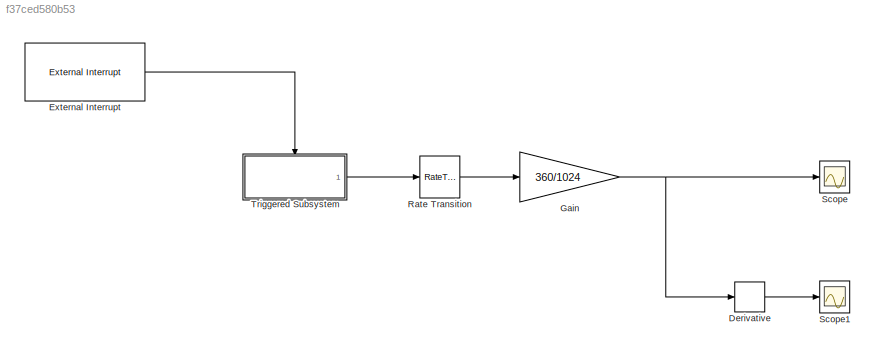
MODEL slx_f37ced580b53
KIND model
CONFIG AbsTol = auto
CONFIG EnableMultiTasking = on
CONFIG FixedStep = 0.005
CONFIG MaxStep = auto
CONFIG MinStep = auto
CONFIG RelTol = 1e-3
CONFIG SampleTimeConstraint = Unconstrained
CONFIG SolverName = FixedStepAuto
CONFIG StartTime = 0.0
CONFIG StopTime = inf
BLOCK [Derivative] Derivative
BLOCK [Reference] External Interrupt  REF=arduinolib/External Interrupt
  Ports = [0, 1]
  SourceBlock = arduinolib/External Interrupt
  SourceProductBaseCode = ARDUINO
  SourceType = Arduino Interrupt Block
BLOCK [Gain] Gain
  Gain = 360/1024
BLOCK [RateTransition] Rate Transition
  Deterministic = off
BLOCK [Scope] Scope
  Floating = off
  NumInputPorts = 1
  Ports = [1]
  ScopeSpecificationString = Simulink.scopes.TimeScopeBlockCfg('CurrentConfiguration', extmgr.ConfigurationSet(extmgr.Configuration('Core','General UI',true),extmgr.Configuration('Core','Source UI',true),extmgr.Configuration('Sources','WiredSimulink',true),extmgr.Configuration('Visuals','Time Domain',true,'SerializedDisplays',{struct('MinYLimReal','-50.42947','MaxYLimReal','399.0867','YLabelReal','','MinYLimMag','0.00000','Ma...<+1764ch>
BLOCK [Scope] Scope1
  Floating = off
  NumInputPorts = 1
  Ports = [1]
  ScopeSpecificationString = Simulink.scopes.TimeScopeBlockCfg('CurrentConfiguration', extmgr.ConfigurationSet(extmgr.Configuration('Core','General UI',true),extmgr.Configuration('Core','Source UI',true),extmgr.Configuration('Sources','WiredSimulink',true,'DataLoggingVariableName','ScopeData1'),extmgr.Configuration('Visuals','Time Domain',true,'SerializedDisplays',{struct('MinYLimReal','-175.78125','MaxYLimReal','850.12705','...<+1509ch>
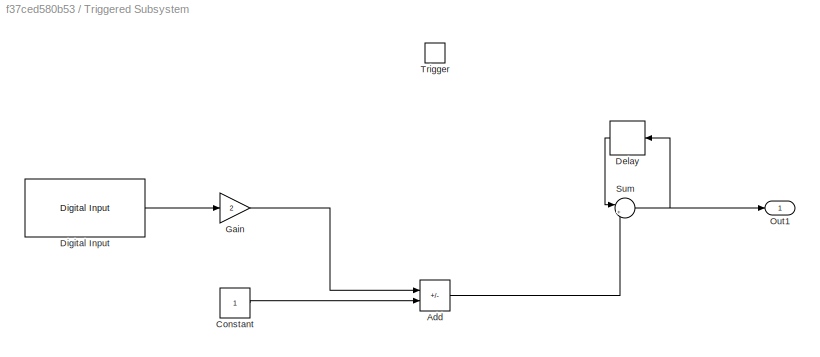
BLOCK [SubSystem] Triggered Subsystem
  Ports = [0, 1, 0, 1]
  RequestExecContextInheritance = off
  TreatAsAtomicUnit = on
BLOCK [Sum] Triggered Subsystem/Add
  IconShape = rectangular
  Inputs = +-
  Ports = [2, 1]
BLOCK [Constant] Triggered Subsystem/Constant
BLOCK [Delay] Triggered Subsystem/Delay
  DelayLength = 1
  InputPortMap = u0
  NameLocation = top
  Ports = [1, 1]
BLOCK [Reference] Triggered Subsystem/Digital Input  REF=arduinolib/Digital Input
  Ports = [0, 1]
  SourceBlock = arduinolib/Digital Input
  SourceProductBaseCode = ARDUINO
  SourceType = Arduino Digital Input
BLOCK [Gain] Triggered Subsystem/Gain
  Gain = 2
BLOCK [Outport] Triggered Subsystem/Out1
BLOCK [Sum] Triggered Subsystem/Sum
  Inputs = |++
  Ports = [2, 1]
BLOCK [TriggerPort] Triggered Subsystem/Trigger
  Ports = []
  StatesWhenEnabling = held
  TriggerType = function-call
  VariantControl = (inherit)
LINE Derivative:1 -> Scope1:1
LINE External Interrupt:1 -> Triggered Subsystem:trigger
NET Gain:1 -> Derivative:1, Scope:1
LINE Rate Transition:1 -> Gain:1
LINE Triggered Subsystem/Add:1 -> Triggered Subsystem/Sum:2
LINE Triggered Subsystem/Constant:1 -> Triggered Subsystem/Add:2
LINE Triggered Subsystem/Delay:1 -> Triggered Subsystem/Sum:1
LINE Triggered Subsystem/Digital Input:1 -> Triggered Subsystem/Gain:1
LINE Triggered Subsystem/Gain:1 -> Triggered Subsystem/Add:1
NET Triggered Subsystem/Sum:1 -> Triggered Subsystem/Delay:1, Triggered Subsystem/Out1:1
LINE Triggered Subsystem:1 -> Rate Transition:1
note: NET lines group one-source signal fan-out (src -> all destinations, sorted); 1:1 wires keep LINE
